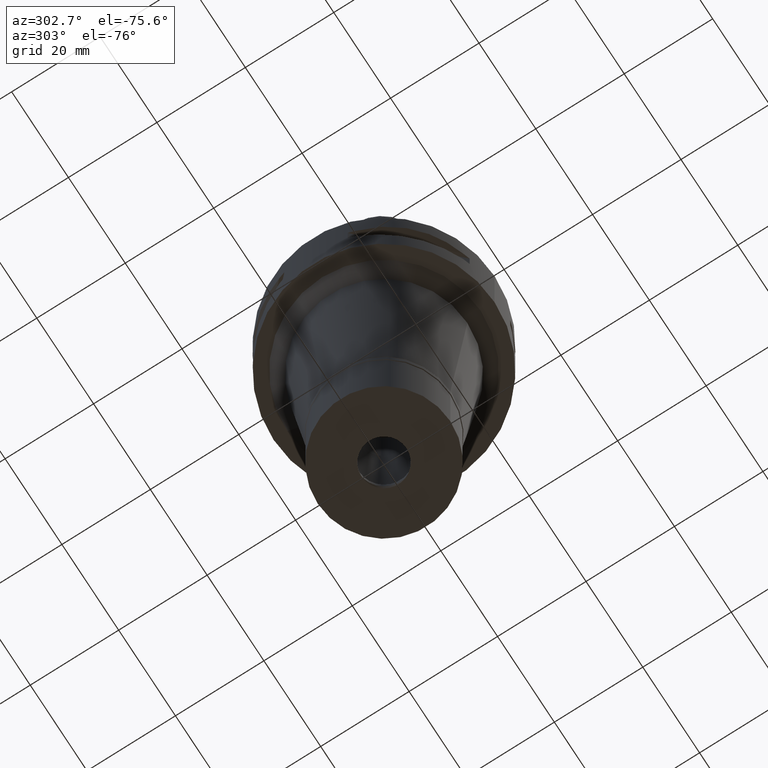
[diagram: clean part render]
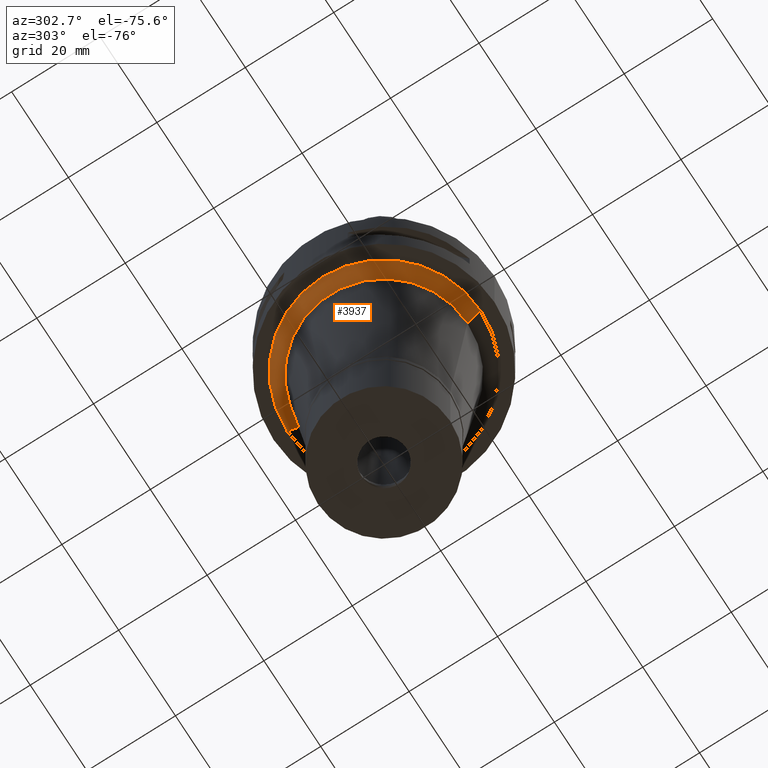
[diagram: same view with one face highlighted and labeled with its STEP entity id]
A machine part, auxiliary view. The second image highlights one B-rep face of the part: STEP entity #3937.
In plain terms, the highlighted conical surface has half-angle 45 deg.
Its self-contained STEP definition (entity closure, byte-faithful):
#20 = VERTEX_POINT ( 'NONE', #2056 ) ;
#33 = CARTESIAN_POINT ( 'NONE',  ( 0.0000000000000000000, -18.86699892784999832, -23.00000000000000000 ) ) ;
#310 = EDGE_LOOP ( 'NONE', ( #3429, #3041, #2384, #1491 ) ) ;
#313 = CIRCLE ( 'NONE', #1413, 18.86699892784999832 ) ;
#375 = VECTOR ( 'NONE', #2842, 1000.000000000000000 ) ;
#493 = CARTESIAN_POINT ( 'NONE',  ( 0.0000000000000000000, 21.86699892785000188, -20.00000000000000000 ) ) ;
#679 = DIRECTION ( 'NONE',  ( 0.0000000000000000000, 0.0000000000000000000, 1.000000000000000000 ) ) ;
#831 = DIRECTION ( 'NONE',  ( 0.0000000000000000000, 0.0000000000000000000, -1.000000000000000000 ) ) ;
#855 = DIRECTION ( 'NONE',  ( 0.0000000000000000000, -0.7071067811869975461, -0.7071067811860975993 ) ) ;
#1263 = CARTESIAN_POINT ( 'NONE',  ( 0.0000000000000000000, 18.86699892784999832, -23.00000000000000000 ) ) ;
#1320 = LINE ( 'NONE', #493, #4395 ) ;
#1346 = EDGE_CURVE ( 'NONE', #2454, #2257, #2771, .T. ) ;
#1413 = AXIS2_PLACEMENT_3D ( 'NONE', #2554, #831, #2184 ) ;
#1491 = ORIENTED_EDGE ( 'NONE', *, *, #4056, .T. ) ;
#1597 = CARTESIAN_POINT ( 'NONE',  ( 0.0000000000000000000, -21.86699892785000188, -20.00000000000000000 ) ) ;
#1879 = AXIS2_PLACEMENT_3D ( 'NONE', #3751, #4107, #4394 ) ;
#2056 = CARTESIAN_POINT ( 'NONE',  ( 0.0000000000000000000, 21.86699892785000188, -20.00000000000000000 ) ) ;
#2078 = CARTESIAN_POINT ( 'NONE',  ( 0.0000000000000000000, -21.86699892785000188, -20.00000000000000000 ) ) ;
#2184 = DIRECTION ( 'NONE',  ( 0.0000000000000000000, -1.000000000000000000, 0.0000000000000000000 ) ) ;
#2257 = VERTEX_POINT ( 'NONE', #33 ) ;
#2384 = ORIENTED_EDGE ( 'NONE', *, *, #3225, .T. ) ;
#2454 = VERTEX_POINT ( 'NONE', #1597 ) ;
#2537 = VERTEX_POINT ( 'NONE', #1263 ) ;
#2554 = CARTESIAN_POINT ( 'NONE',  ( 0.0000000000000000000, 0.0000000000000000000, -23.00000000000000000 ) ) ;
#2750 = AXIS2_PLACEMENT_3D ( 'NONE', #4030, #679, #3023 ) ;
#2771 = LINE ( 'NONE', #2078, #375 ) ;
#2842 = DIRECTION ( 'NONE',  ( 0.0000000000000000000, 0.7071067811869975461, -0.7071067811860975993 ) ) ;
#3023 = DIRECTION ( 'NONE',  ( 0.0000000000000000000, 1.000000000000000000, 0.0000000000000000000 ) ) ;
#3041 = ORIENTED_EDGE ( 'NONE', *, *, #1346, .F. ) ;
#3225 = EDGE_CURVE ( 'NONE', #2454, #20, #3983, .T. ) ;
#3429 = ORIENTED_EDGE ( 'NONE', *, *, #3594, .F. ) ;
#3594 = EDGE_CURVE ( 'NONE', #2257, #2537, #313, .T. ) ;
#3751 = CARTESIAN_POINT ( 'NONE',  ( 0.0000000000000000000, 0.0000000000000000000, -20.00000000000000000 ) ) ;
#3937 = ADVANCED_FACE ( 'NONE', ( #4414 ), #4061, .T. ) ;
#3983 = CIRCLE ( 'NONE', #1879, 21.86699892785000188 ) ;
#4030 = CARTESIAN_POINT ( 'NONE',  ( 0.0000000000000000000, 0.0000000000000000000, -21.50000000000000000 ) ) ;
#4056 = EDGE_CURVE ( 'NONE', #20, #2537, #1320, .T. ) ;
#4061 = CONICAL_SURFACE ( 'NONE', #2750, 20.36699892784999832, 0.7853981633972997312 ) ;
#4107 = DIRECTION ( 'NONE',  ( 0.0000000000000000000, 0.0000000000000000000, -1.000000000000000000 ) ) ;
#4394 = DIRECTION ( 'NONE',  ( 0.0000000000000000000, -1.000000000000000000, 0.0000000000000000000 ) ) ;
#4395 = VECTOR ( 'NONE', #855, 1000.000000000000000 ) ;
#4414 = FACE_OUTER_BOUND ( 'NONE', #310, .T. ) ;